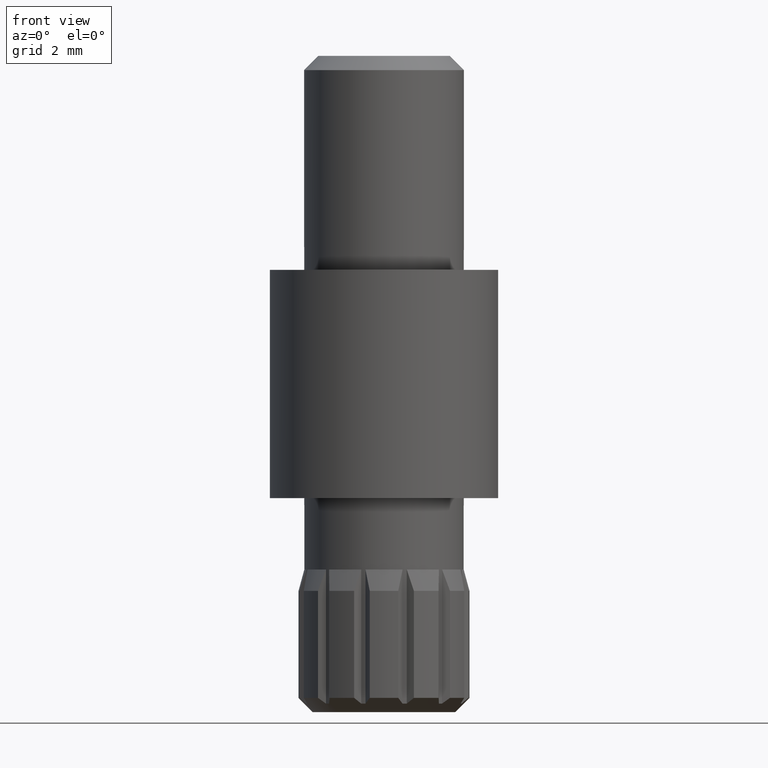
[diagram: clean part render]
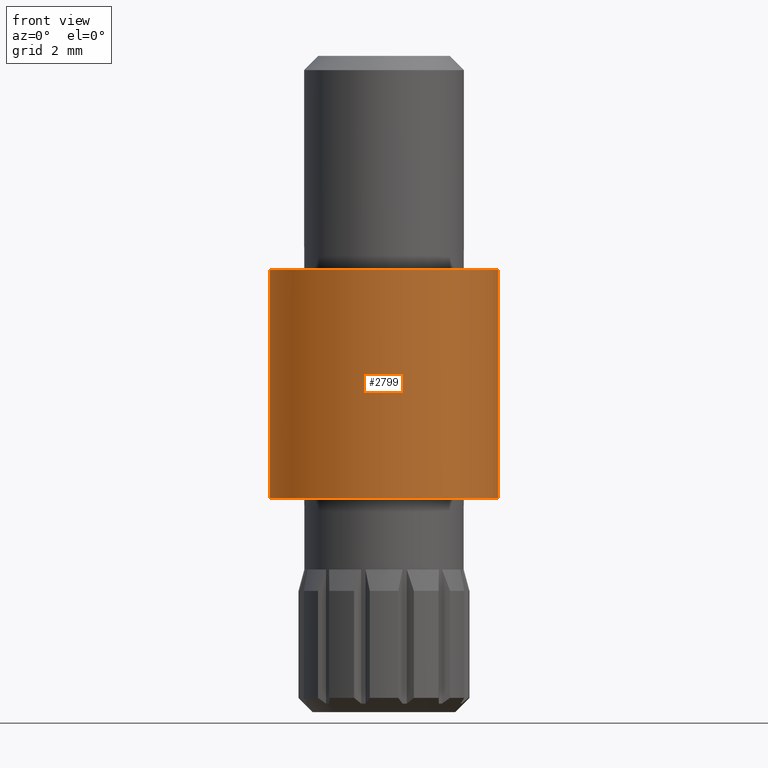
[diagram: same view with one face highlighted and labeled with its STEP entity id]
A machine part, front view. The second image highlights one B-rep face of the part: STEP entity #2799.
In plain terms, the highlighted cylindrical surface (bore or boss wall) has radius 4 mm, axis along (-0, -0, -1).
Its self-contained STEP definition (entity closure, byte-faithful):
#83 = CYLINDRICAL_SURFACE ( 'NONE', #5053, 4.000000000000000000 ) ;
#137 = EDGE_LOOP ( 'NONE', ( #11383 ) ) ;
#859 = CARTESIAN_POINT ( 'NONE',  ( 0.000000000000000000, 0.000000000000000000, 4.000000000000000000 ) ) ;
#2799 = ADVANCED_FACE ( 'NONE', ( #4912, #12606 ), #83, .T. ) ;
#2804 = VERTEX_POINT ( 'NONE', #10772 ) ;
#3120 = EDGE_LOOP ( 'NONE', ( #5913 ) ) ;
#3508 = CARTESIAN_POINT ( 'NONE',  ( 0.000000000000000000, 0.000000000000000000, -4.000000000000000000 ) ) ;
#3763 = DIRECTION ( 'NONE',  ( -1.000000000000000000, 0.000000000000000000, 0.000000000000000000 ) ) ;
#3881 = CARTESIAN_POINT ( 'NONE',  ( 4.000000000000000000, 0.000000000000000000, 4.000000000000000000 ) ) ;
#4275 = CIRCLE ( 'NONE', #12305, 4.000000000000000000 ) ;
#4789 = DIRECTION ( 'NONE',  ( -0.000000000000000000, -0.000000000000000000, -1.000000000000000000 ) ) ;
#4912 = FACE_OUTER_BOUND ( 'NONE', #3120, .T. ) ;
#5053 = AXIS2_PLACEMENT_3D ( 'NONE', #859, #4789, #3763 ) ;
#5913 = ORIENTED_EDGE ( 'NONE', *, *, #10847, .F. ) ;
#6983 = CARTESIAN_POINT ( 'NONE',  ( 0.000000000000000000, 0.000000000000000000, 4.000000000000000000 ) ) ;
#7024 = DIRECTION ( 'NONE',  ( 0.000000000000000000, 0.000000000000000000, 1.000000000000000000 ) ) ;
#9383 = DIRECTION ( 'NONE',  ( 0.000000000000000000, 0.000000000000000000, 1.000000000000000000 ) ) ;
#10248 = AXIS2_PLACEMENT_3D ( 'NONE', #3508, #9383, #10410 ) ;
#10410 = DIRECTION ( 'NONE',  ( 1.000000000000000000, 0.000000000000000000, 0.000000000000000000 ) ) ;
#10772 = CARTESIAN_POINT ( 'NONE',  ( 4.000000000000000000, 0.000000000000000000, -4.000000000000000000 ) ) ;
#10847 = EDGE_CURVE ( 'NONE', #11597, #11597, #4275, .T. ) ;
#11383 = ORIENTED_EDGE ( 'NONE', *, *, #12022, .T. ) ;
#11597 = VERTEX_POINT ( 'NONE', #3881 ) ;
#11626 = CIRCLE ( 'NONE', #10248, 4.000000000000000000 ) ;
#11962 = DIRECTION ( 'NONE',  ( 1.000000000000000000, 0.000000000000000000, 0.000000000000000000 ) ) ;
#12022 = EDGE_CURVE ( 'NONE', #2804, #2804, #11626, .T. ) ;
#12305 = AXIS2_PLACEMENT_3D ( 'NONE', #6983, #7024, #11962 ) ;
#12606 = FACE_OUTER_BOUND ( 'NONE', #137, .T. ) ;